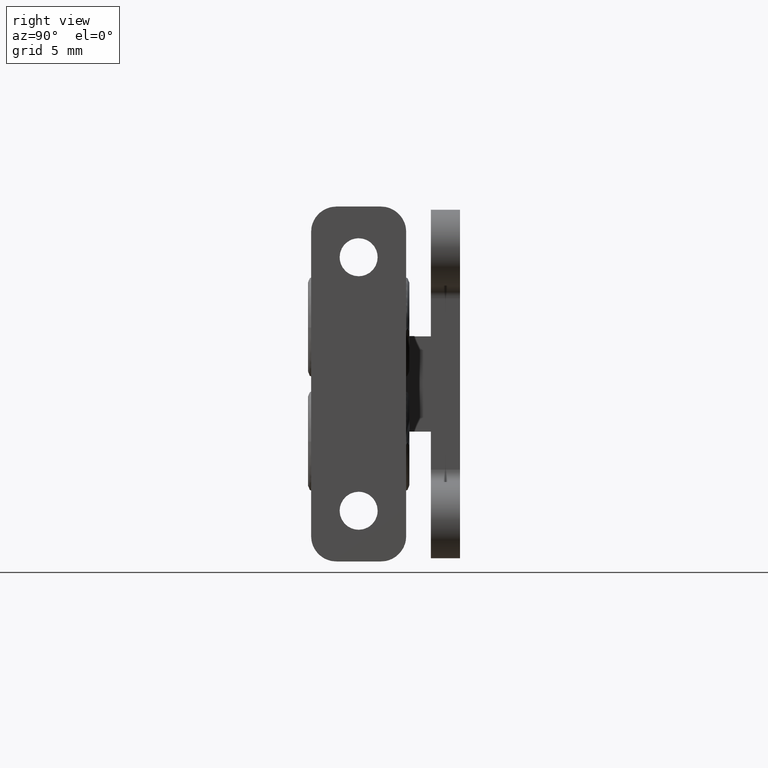
[diagram: clean part render]
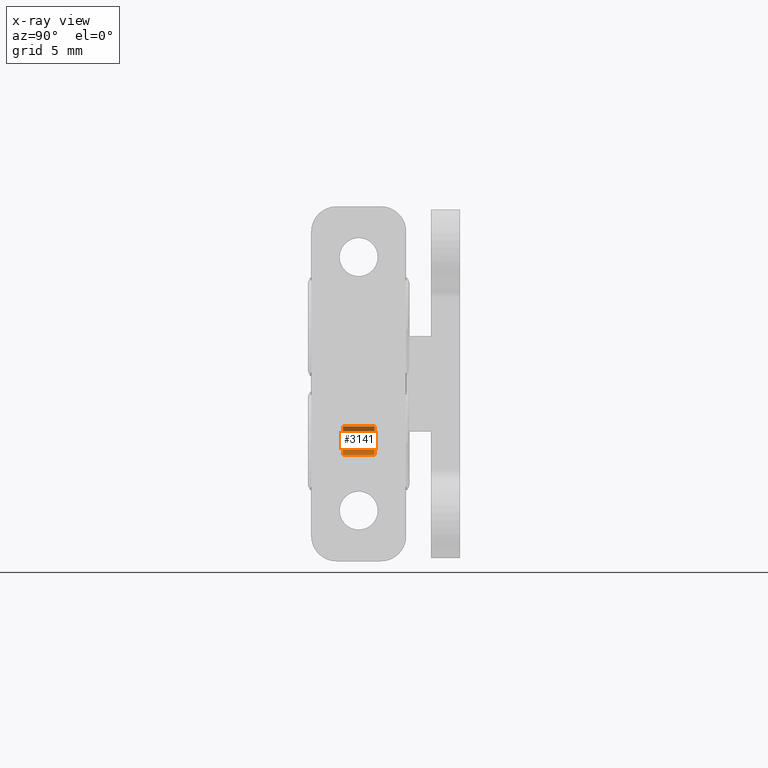
[diagram: x-ray — body ghosted, one internal face saturated and labeled with its STEP entity id]
A machine part, right view, then the same camera in x-ray: the body is ghosted and one INTERNAL B-rep face — a face not visible from any outside direction — is saturated and labeled: STEP entity #3141.
In plain terms, the highlighted face is a freeform B-spline surface patch.
Its self-contained STEP definition (entity closure, byte-faithful):
#2963=CARTESIAN_POINT('',(14.317526063415420,-6.750000000001753,-3.349237301633718));
#2964=VERTEX_POINT('',#2963);
#3004=CARTESIAN_POINT('',(14.283492230342899,-6.749999999997565,-5.614723932480038));
#3005=VERTEX_POINT('',#3004);
#3016=CARTESIAN_POINT('',(14.283492230719281,-9.249999999999872,-5.614723932890788));
#3017=VERTEX_POINT('',#3016);
#3018=CARTESIAN_POINT('',(14.283492230719281,-9.249999999999872,-5.614723932890788));
#3019=CARTESIAN_POINT('',(14.283492230342899,-6.749999999997565,-5.614723932480038));
#3020=QUASI_UNIFORM_CURVE('',1,(#3018,#3019),.UNSPECIFIED.,.F.,.U.);
#3021=EDGE_CURVE('',#3017,#3005,#3020,.T.);
#3064=CARTESIAN_POINT('',(14.317526062968859,-9.249999999999872,-3.349237302092584));
#3065=VERTEX_POINT('',#3064);
#3075=CARTESIAN_POINT('',(14.317526062968859,-9.249999999999872,-3.349237302092584));
#3076=CARTESIAN_POINT('',(14.317526063415420,-6.750000000001753,-3.349237301633718));
#3077=QUASI_UNIFORM_CURVE('',1,(#3075,#3076),.UNSPECIFIED.,.F.,.U.);
#3078=EDGE_CURVE('',#3065,#2964,#3077,.T.);
#3083=CARTESIAN_POINT('',(14.283492394263300,-9.312499999999869,-5.614723842565839));
#3084=CARTESIAN_POINT('',(13.230799098996835,-9.312499999999869,-4.465910700422925));
#3085=CARTESIAN_POINT('',(14.317525895829480,-9.312499999999870,-3.349237212555901));
#3086=CARTESIAN_POINT('',(14.283492394263300,-6.685937500000003,-5.614723842565839));
#3087=CARTESIAN_POINT('',(13.230799098996835,-6.685937500000004,-4.465910700422925));
#3088=CARTESIAN_POINT('',(14.317525895829480,-6.685937500000005,-3.349237212555901));
#3096=(BOUNDED_SURFACE()B_SPLINE_SURFACE(2,1,((#3083,#3086),(#3084,#3087),(#3085,#3088)),.UNSPECIFIED.,.F.,.F.,.U.)B_SPLINE_SURFACE_WITH_KNOTS((3,3),(2,2),(0.0,1.507964473723101),(0.0,2.626562499999867),.UNSPECIFIED.)GEOMETRIC_REPRESENTATION_ITEM()RATIONAL_B_SPLINE_SURFACE(((1.0,1.0),(0.718822509939086,0.718822509939086),(0.977505800795127,0.977505800795127)))REPRESENTATION_ITEM('')SURFACE());
#3097=CARTESIAN_POINT('',(13.850000000000160,-6.750000000000001,-4.500000729174640));
#3098=VERTEX_POINT('',#3097);
#3099=CARTESIAN_POINT('',(14.317526063415420,-6.750000000001753,-3.349237301633718));
#3100=CARTESIAN_POINT('',(14.173974282404849,-6.750000000001535,-3.496494516730914));
#3101=CARTESIAN_POINT('',(14.006540608683689,-6.750000000001134,-3.749832551158743));
#3102=CARTESIAN_POINT('',(13.875212052862080,-6.750000000000524,-4.155118742381973));
#3103=CARTESIAN_POINT('',(13.849976665170001,-6.750000000000203,-4.373976921050100));
#3104=CARTESIAN_POINT('',(13.850000000000160,-6.750000000000001,-4.500000729174640));
#3105=B_SPLINE_CURVE_WITH_KNOTS('',3,(#3099,#3100,#3101,#3102,#3103,#3104),.UNSPECIFIED.,.F.,.U.,(4,1,1,4),(0.000000015323270,0.616856942617136,0.895422917046791,1.273491420585529),.UNSPECIFIED.);
#3106=EDGE_CURVE('',#2964,#3098,#3105,.T.);
#3107=ORIENTED_EDGE('',*,*,#3106,.F.);
#3108=ORIENTED_EDGE('',*,*,#3078,.F.);
#3109=CARTESIAN_POINT('',(13.850000000000160,-9.249999999999872,-4.500000729174640));
#3110=VERTEX_POINT('',#3109);
#3111=CARTESIAN_POINT('',(14.317526062968859,-9.249999999999872,-3.349237302092584));
#3112=CARTESIAN_POINT('',(14.197182146470730,-9.249999999999886,-3.472767487638328));
#3113=CARTESIAN_POINT('',(14.015213423497849,-9.249999999999870,-3.730606886387494));
#3114=CARTESIAN_POINT('',(13.875910722308880,-9.249999999999863,-4.135198270863951));
#3115=CARTESIAN_POINT('',(13.849989562892810,-9.249999999999881,-4.387245382485597));
#3116=CARTESIAN_POINT('',(13.850000000000160,-9.249999999999872,-4.500000729174640));
#3117=B_SPLINE_CURVE_WITH_KNOTS('',3,(#3111,#3112,#3113,#3114,#3115,#3116),.UNSPECIFIED.,.F.,.U.,(4,1,1,4),(0.000000015323651,0.517359824738865,0.935220144978243,1.273491419945224),.UNSPECIFIED.);
#3118=EDGE_CURVE('',#3065,#3110,#3117,.T.);
#3119=ORIENTED_EDGE('',*,*,#3118,.T.);
#3120=CARTESIAN_POINT('',(13.850000000000160,-9.249999999999872,-4.500000729174640));
#3121=CARTESIAN_POINT('',(13.849923097868251,-9.249999999999831,-4.665751061024376));
#3122=CARTESIAN_POINT('',(13.886812330603281,-9.249999999999883,-4.907931141080981));
#3123=CARTESIAN_POINT('',(14.035055441647939,-9.249999999999877,-5.289091022878662));
#3124=CARTESIAN_POINT('',(14.171448984605471,-9.249999999999837,-5.492574044001644));
#3125=CARTESIAN_POINT('',(14.283492230719281,-9.249999999999872,-5.614723932890788));
#3126=B_SPLINE_CURVE_WITH_KNOTS('',3,(#3120,#3121,#3122,#3123,#3124,#3125),.UNSPECIFIED.,.F.,.U.,(4,1,1,4),(0.000000012570891,0.497220283318533,0.726698011449314,1.223918282216929),.UNSPECIFIED.);
#3127=EDGE_CURVE('',#3110,#3017,#3126,.T.);
#3128=ORIENTED_EDGE('',*,*,#3127,.T.);
#3129=ORIENTED_EDGE('',*,*,#3021,.T.);
#3130=CARTESIAN_POINT('',(13.850000000000160,-6.750000000000001,-4.500000729174640));
#3131=CARTESIAN_POINT('',(13.849922757908709,-6.749999999999655,-4.665746000336145));
#3132=CARTESIAN_POINT('',(13.895529299749530,-6.749999999998973,-4.965311224791227));
#3133=CARTESIAN_POINT('',(14.064270530817531,-6.749999999998171,-5.340068197162242));
#3134=CARTESIAN_POINT('',(14.210274449193580,-6.749999999997751,-5.534833804851764));
#3135=CARTESIAN_POINT('',(14.283492230342899,-6.749999999997565,-5.614723932480038));
#3136=B_SPLINE_CURVE_WITH_KNOTS('',3,(#3130,#3131,#3132,#3133,#3134,#3135),.UNSPECIFIED.,.F.,.U.,(4,1,1,4),(0.000000012571872,0.497220283092645,0.898814884180710,1.223918281659796),.UNSPECIFIED.);
#3137=EDGE_CURVE('',#3098,#3005,#3136,.T.);
#3138=ORIENTED_EDGE('',*,*,#3137,.F.);
#3139=EDGE_LOOP('',(#3107,#3108,#3119,#3128,#3129,#3138));
#3140=FACE_OUTER_BOUND('',#3139,.T.);
#3141=ADVANCED_FACE('',(#3140),#3096,.F.);